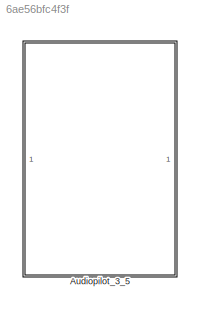
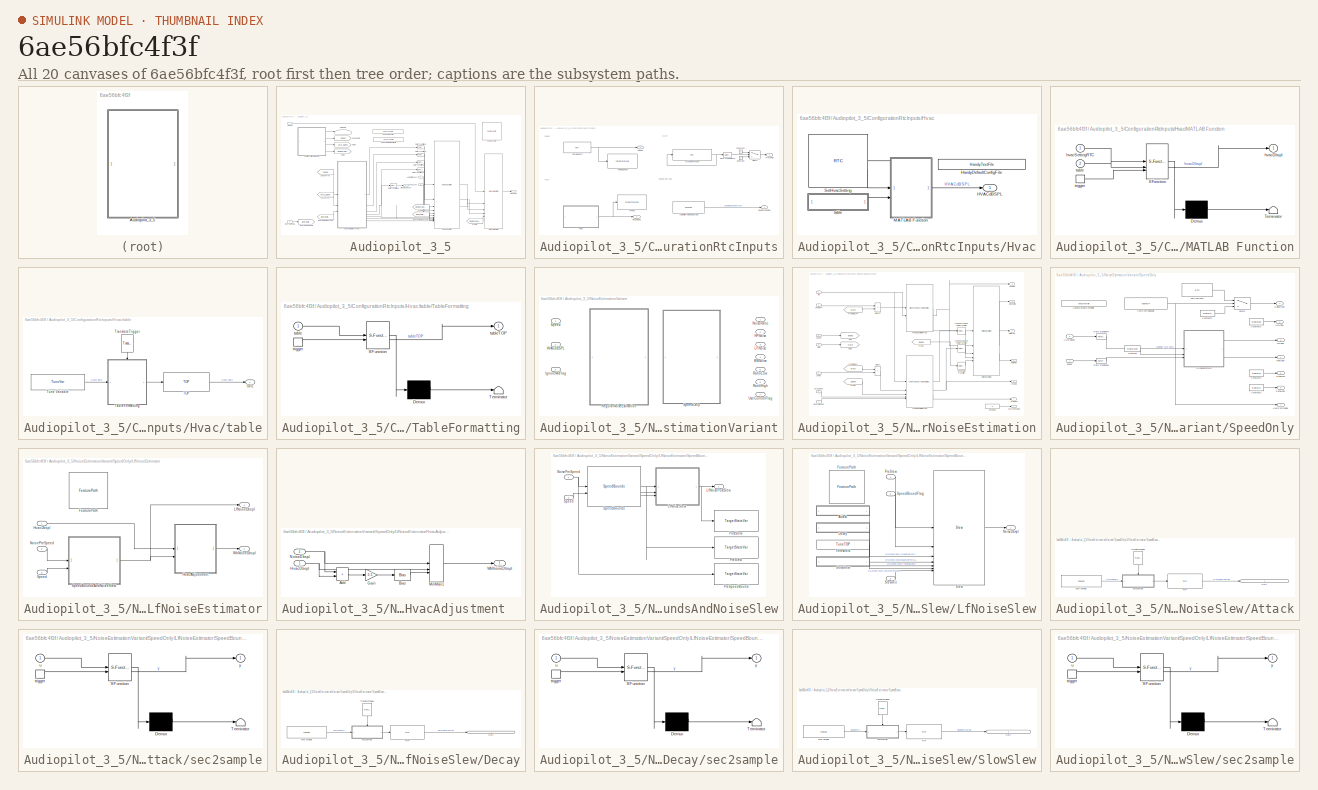
[diagram: thumbnail index - all 20 canvases of the model, root first then tree order]
MODEL slx_6ae56bfc4f3f
KIND library
CONFIG AbsTol = auto
CONFIG EnableMultiTasking = off
CONFIG FixedStep = auto
CONFIG MaxStep = auto
CONFIG MinStep = auto
CONFIG RelTol = 1e-3
CONFIG SampleTimeConstraint = Unconstrained
CONFIG SolverName = VariableStepAuto
CONFIG StartTime = 0.0
CONFIG StopTime = 10.0
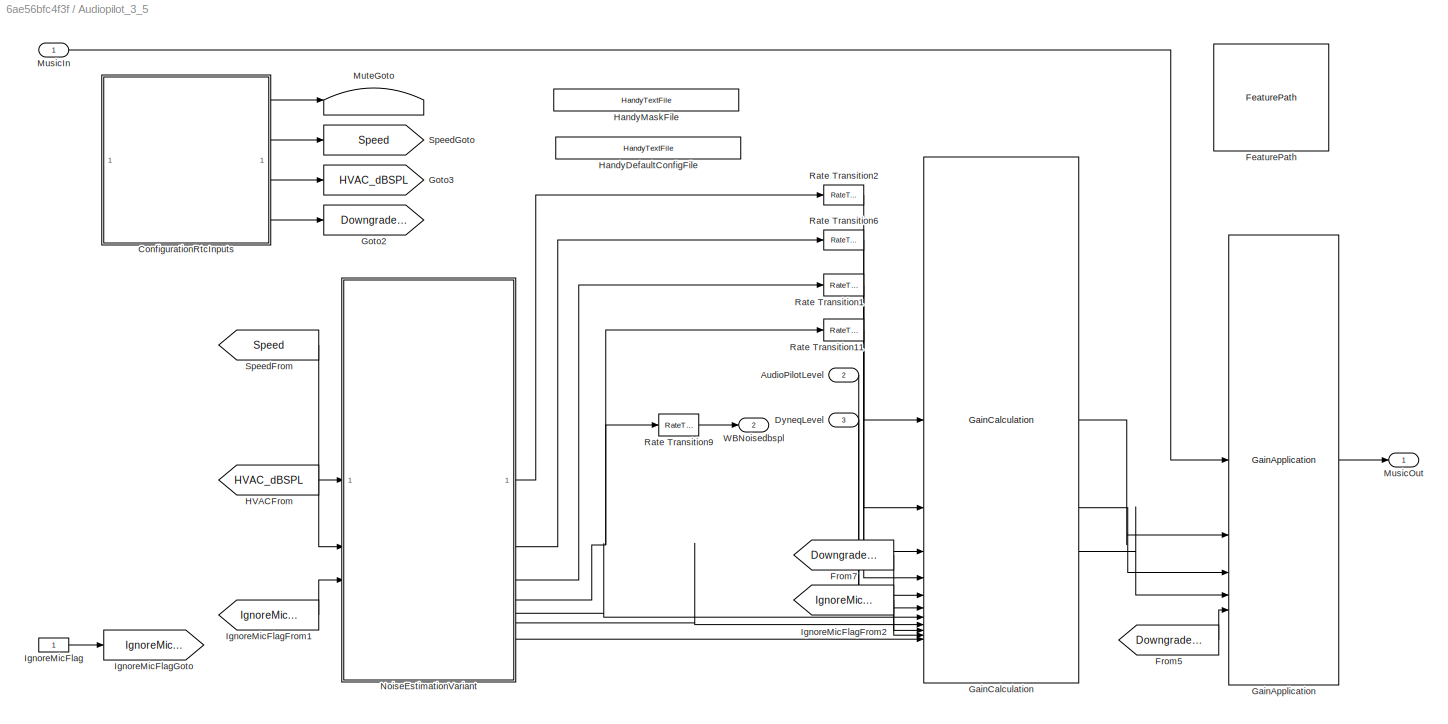
BLOCK [SubSystem] Audiopilot_3_5
BLOCK [Inport] Audiopilot_3_5/AudioPilotLevel
  OutDataTypeStr = single
  Port = 2
  PortDimensions = 1
  SignalType = real
BLOCK [SubSystem] Audiopilot_3_5/ConfigurationRtcInputs
BLOCK [Reference] Audiopilot_3_5/ConfigurationRtcInputs/APHvac  REF=StateVar/TargetStateVar
  SourceBlock = StateVar/TargetStateVar
  SourceProductName = Bose Talaria
  SourceType = Talaria Target State Variable
BLOCK [Reference] Audiopilot_3_5/ConfigurationRtcInputs/AudiopilotTwoDowngrade  REF=TuneVar/TuneTOP
  SourceBlock = TuneVar/TuneTOP
  SourceProductName = Bose Talaria
  SourceType = Talaria Trivial Tune TOP
BLOCK [Constant] Audiopilot_3_5/ConfigurationRtcInputs/Constant
  OutDataTypeStr = single
BLOCK [Constant] Audiopilot_3_5/ConfigurationRtcInputs/Constant1
  OutDataTypeStr = single
  Value = 0
BLOCK [Outport] Audiopilot_3_5/ConfigurationRtcInputs/DowngradeFlag
  Port = 4
  VectorParamsAs1DForOutWhenUnconnected = off
BLOCK [SubSystem] Audiopilot_3_5/ConfigurationRtcInputs/Hvac
BLOCK [Outport] Audiopilot_3_5/ConfigurationRtcInputs/Hvac/HVACdBSPL
  VectorParamsAs1DForOutWhenUnconnected = off
BLOCK [Reference] Audiopilot_3_5/ConfigurationRtcInputs/Hvac/HandyDefaultConfigFile  REF=HandyTextFile/HandyTextFile
  SourceBlock = HandyTextFile/HandyTextFile
  SourceProductName = Bose Talaria
  SourceType = Talaria Handy Text File
BLOCK [SubSystem] Audiopilot_3_5/ConfigurationRtcInputs/Hvac/MATLAB Function
  ErrorFcn = Stateflow.Translate.translate
  PermitHierarchicalResolution = ExplicitOnly
  SFBlockType = MATLAB Function
  TreatAsAtomicUnit = on
BLOCK [Demux] Audiopilot_3_5/ConfigurationRtcInputs/Hvac/MATLAB Function/ Demux 
  Outputs = 1
BLOCK [S-Function] Audiopilot_3_5/ConfigurationRtcInputs/Hvac/MATLAB Function/ SFunction 
  EnableBusSupport = off
  FunctionName = sf_sfun
  PortCounts = [3 2]
  SFcnIsStateOwnerBlock = off
  SFunctionDeploymentMode = off
  Tag = Stateflow S-Function 2
BLOCK [Terminator] Audiopilot_3_5/ConfigurationRtcInputs/Hvac/MATLAB Function/ Terminator 
BLOCK [Outport] Audiopilot_3_5/ConfigurationRtcInputs/Hvac/MATLAB Function/hvacDbspl
  VectorParamsAs1DForOutWhenUnconnected = off
BLOCK [Inport] Audiopilot_3_5/ConfigurationRtcInputs/Hvac/MATLAB Function/hvacSettingRTC
BLOCK [Inport] Audiopilot_3_5/ConfigurationRtcInputs/Hvac/MATLAB Function/table
  Port = 2
BLOCK [TriggerPort] Audiopilot_3_5/ConfigurationRtcInputs/Hvac/MATLAB Function/trigger
  ShowOutputPort = on
  StatesWhenEnabling = held
  TriggerType = function-call
  VariantControl = (inherit)
BLOCK [Reference] Audiopilot_3_5/ConfigurationRtcInputs/Hvac/SetHvacSetting  REF=RTC/RTC
  SourceBlock = RTC/RTC
  SourceProductName = Bose Talaria
  SourceType = Talaria RTC Receive
BLOCK [SubSystem] Audiopilot_3_5/ConfigurationRtcInputs/Hvac/table
BLOCK [Outport] Audiopilot_3_5/ConfigurationRtcInputs/Hvac/table/Out1
  VectorParamsAs1DForOutWhenUnconnected = off
BLOCK [Reference] Audiopilot_3_5/ConfigurationRtcInputs/Hvac/table/TOP  REF=TOP/TOP
  SourceBlock = TOP/TOP
  SourceProductName = Bose Talaria
  SourceType = Talaria Target Overlay Parameter
BLOCK [SubSystem] Audiopilot_3_5/ConfigurationRtcInputs/Hvac/table/TableFormatting
  ErrorFcn = Stateflow.Translate.translate
  PermitHierarchicalResolution = ExplicitOnly
  SFBlockType = MATLAB Function
  TreatAsAtomicUnit = on
BLOCK [Demux] Audiopilot_3_5/ConfigurationRtcInputs/Hvac/table/TableFormatting/ Demux 
  Outputs = 1
BLOCK [S-Function] Audiopilot_3_5/ConfigurationRtcInputs/Hvac/table/TableFormatting/ SFunction 
  EnableBusSupport = off
  FunctionName = sf_sfun
  Parameters = MaskHvacTableSize
  PortCounts = [2 2]
  SFcnIsStateOwnerBlock = off
  SFunctionDeploymentMode = off
  Tag = Stateflow S-Function 8
BLOCK [Terminator] Audiopilot_3_5/ConfigurationRtcInputs/Hvac/table/TableFormatting/ Terminator 
BLOCK [Inport] Audiopilot_3_5/ConfigurationRtcInputs/Hvac/table/TableFormatting/table
BLOCK [Outport] Audiopilot_3_5/ConfigurationRtcInputs/Hvac/table/TableFormatting/tableTOP
  VectorParamsAs1DForOutWhenUnconnected = off
BLOCK [TriggerPort] Audiopilot_3_5/ConfigurationRtcInputs/Hvac/table/TableFormatting/trigger
  ShowOutputPort = on
  StatesWhenEnabling = held
  TriggerType = function-call
  VariantControl = Variant
BLOCK [Reference] Audiopilot_3_5/ConfigurationRtcInputs/Hvac/table/TranslateTrigger  REF=TuneVar/TranslateTrigger
  NameLocation = left
  SourceBlock = TuneVar/TranslateTrigger
  SourceProductName = Bose Talaria
  SourceType = Talaria Translate Trigger
BLOCK [Reference] Audiopilot_3_5/ConfigurationRtcInputs/Hvac/table/Tune Variable  REF=TuneVar/TuneVar
  SourceBlock = TuneVar/TuneVar
  SourceProductName = Bose Talaria
  SourceType = Talaria Tune Variable
BLOCK [Outport] Audiopilot_3_5/ConfigurationRtcInputs/HvacdBSPL
  Port = 3
  VectorParamsAs1DForOutWhenUnconnected = off
BLOCK [Outport] Audiopilot_3_5/ConfigurationRtcInputs/MuteGain
  OutDataTypeStr = single
  VectorParamsAs1DForOutWhenUnconnected = off
BLOCK [Reference] Audiopilot_3_5/ConfigurationRtcInputs/MuteReference  REF=RTC/RTC
  SourceBlock = RTC/RTC
  SourceProductName = Bose Talaria
  SourceType = Talaria RTC Receive
BLOCK [RateTransition] Audiopilot_3_5/ConfigurationRtcInputs/Rate Transition12
  Deterministic = off
BLOCK [Reference] Audiopilot_3_5/ConfigurationRtcInputs/SetSpeedIn  REF=RTC/RTC
  SourceBlock = RTC/RTC
  SourceProductName = Bose Talaria
  SourceType = Talaria RTC Receive
BLOCK [Outport] Audiopilot_3_5/ConfigurationRtcInputs/Speed
  Port = 2
  VectorParamsAs1DForOutWhenUnconnected = off
BLOCK [Switch] Audiopilot_3_5/ConfigurationRtcInputs/Switch
  Criteria = u2 ~= 0
  InputSameDT = off
  OutDataTypeStr = single
  SaturateOnIntegerOverflow = off
BLOCK [Reference] Audiopilot_3_5/ConfigurationRtcInputs/VehicleSpeed  REF=StateVar/TargetStateVar
  SourceBlock = StateVar/TargetStateVar
  SourceProductName = Bose Talaria
  SourceType = Talaria Target State Variable
BLOCK [Inport] Audiopilot_3_5/DyneqLevel
  OutDataTypeStr = single
  Port = 3
  PortDimensions = 1
  SignalType = real
BLOCK [Reference] Audiopilot_3_5/FeaturePath  REF=FeaturePath/FeaturePath
  SourceBlock = FeaturePath/FeaturePath
  SourceProductName = Bose Talaria
  SourceType = Talaria Feature Path
BLOCK [From] Audiopilot_3_5/From5
  GotoTag = DowngradeFlag
  TagVisibility = global
BLOCK [From] Audiopilot_3_5/From7
  GotoTag = DowngradeFlag
  TagVisibility = global
BLOCK [Reference] Audiopilot_3_5/GainApplication  REF=Compensation/GainApplication
  SourceBlock = Compensation/GainApplication
  SourceType = AudioPilot - Loudness Gain Application
BLOCK [Reference] Audiopilot_3_5/GainCalculation  REF=Compensation/GainCalculation
  SourceBlock = Compensation/GainCalculation
  SourceType = AudioPilot - Gain Calculation
BLOCK [Goto] Audiopilot_3_5/Goto2
  GotoTag = DowngradeFlag
BLOCK [Goto] Audiopilot_3_5/Goto3
  GotoTag = HVAC_dBSPL
BLOCK [From] Audiopilot_3_5/HVACFrom
  GotoTag = HVAC_dBSPL
BLOCK [Reference] Audiopilot_3_5/HandyDefaultConfigFile  REF=HandyTextFile/HandyTextFile
  SourceBlock = HandyTextFile/HandyTextFile
  SourceProductName = Bose Talaria
  SourceType = Talaria Handy Text File
BLOCK [Reference] Audiopilot_3_5/HandyMaskFile  REF=HandyTextFile/HandyTextFile
  SourceBlock = HandyTextFile/HandyTextFile
  SourceProductName = Bose Talaria
  SourceType = Talaria Handy Text File
BLOCK [Constant] Audiopilot_3_5/IgnoreMicFlag
  OutDataTypeStr = boolean
BLOCK [From] Audiopilot_3_5/IgnoreMicFlagFrom1
  GotoTag = IgnoreMicFlag
BLOCK [From] Audiopilot_3_5/IgnoreMicFlagFrom2
  GotoTag = IgnoreMicFlag
  TagVisibility = global
BLOCK [Goto] Audiopilot_3_5/IgnoreMicFlagGoto
  GotoTag = IgnoreMicFlag
BLOCK [Inport] Audiopilot_3_5/MusicIn
  OutDataTypeStr = single
  PortDimensions = [FrameSize NumMusicChannels]
  SignalType = real
BLOCK [Outport] Audiopilot_3_5/MusicOut
  VectorParamsAs1DForOutWhenUnconnected = off
BLOCK [Terminator] Audiopilot_3_5/MuteGoto
BLOCK [SubSystem] Audiopilot_3_5/NoiseEstimationVariant
  LabelModeActiveChoice = Speed Only
  PropagateVariantConditions = on
  Variant = on
  VariantControlMode = label
BLOCK [Outport] Audiopilot_3_5/NoiseEstimationVariant/HFNoise
  Port = 2
  VectorParamsAs1DForOutWhenUnconnected = off
BLOCK [Inport] Audiopilot_3_5/NoiseEstimationVariant/HVACdBSPL
  Port = 2
BLOCK [Inport] Audiopilot_3_5/NoiseEstimationVariant/IgnoreMicFlag
  Port = 3
BLOCK [Outport] Audiopilot_3_5/NoiseEstimationVariant/LFNoise
  Port = 3
  VectorParamsAs1DForOutWhenUnconnected = off
BLOCK [Outport] Audiopilot_3_5/NoiseEstimationVariant/NoiseRatio
  VectorParamsAs1DForOutWhenUnconnected = off
BLOCK [Outport] Audiopilot_3_5/NoiseEstimationVariant/RatioHigh
  Port = 6
  VectorParamsAs1DForOutWhenUnconnected = off
BLOCK [Outport] Audiopilot_3_5/NoiseEstimationVariant/RatioLow
  Port = 5
  VectorParamsAs1DForOutWhenUnconnected = off
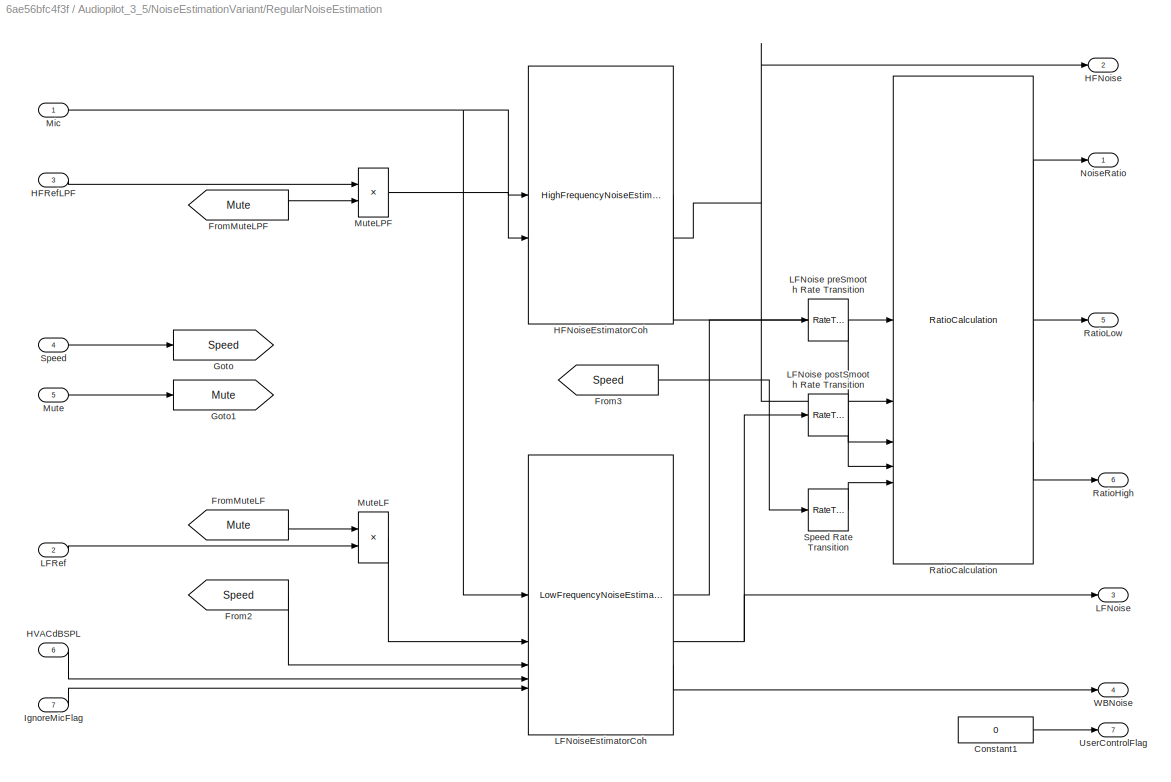
BLOCK [SubSystem] Audiopilot_3_5/NoiseEstimationVariant/RegularNoiseEstimation
  VariantControl = Regular
BLOCK [Constant] Audiopilot_3_5/NoiseEstimationVariant/RegularNoiseEstimation/Constant1
  OutDataTypeStr = boolean
  Value = 0
BLOCK [From] Audiopilot_3_5/NoiseEstimationVariant/RegularNoiseEstimation/From2
  GotoTag = Speed
  TagVisibility = global
BLOCK [From] Audiopilot_3_5/NoiseEstimationVariant/RegularNoiseEstimation/From3
  GotoTag = Speed
  TagVisibility = global
BLOCK [From] Audiopilot_3_5/NoiseEstimationVariant/RegularNoiseEstimation/FromMuteLF
  GotoTag = Mute
  NameLocation = top
  TagVisibility = global
BLOCK [From] Audiopilot_3_5/NoiseEstimationVariant/RegularNoiseEstimation/FromMuteLPF
  GotoTag = Mute
  TagVisibility = global
BLOCK [Goto] Audiopilot_3_5/NoiseEstimationVariant/RegularNoiseEstimation/Goto
  GotoTag = Speed
BLOCK [Goto] Audiopilot_3_5/NoiseEstimationVariant/RegularNoiseEstimation/Goto1
  GotoTag = Mute
BLOCK [Outport] Audiopilot_3_5/NoiseEstimationVariant/RegularNoiseEstimation/HFNoise
  Port = 2
  VectorParamsAs1DForOutWhenUnconnected = off
BLOCK [Reference] Audiopilot_3_5/NoiseEstimationVariant/RegularNoiseEstimation/HFNoiseEstimatorCoh  REF=HighFrequencyNoiseEstimatorCoh/HighFrequencyNoiseEstimatorCoh
  SourceBlock = HighFrequencyNoiseEstimatorCoh/HighFrequencyNoiseEstimatorCoh
  SourceType = AudioPilot - High-Frequency Noise Estimator
BLOCK [Inport] Audiopilot_3_5/NoiseEstimationVariant/RegularNoiseEstimation/HFRefLPF
  OutDataTypeStr = single
  Port = 3
  PortDimensions = [FrameSize NumHFRefLPF]
  SignalType = real
BLOCK [Inport] Audiopilot_3_5/NoiseEstimationVariant/RegularNoiseEstimation/HVACdBSPL
  OutDataTypeStr = single
  Port = 6
  SignalType = real
BLOCK [Inport] Audiopilot_3_5/NoiseEstimationVariant/RegularNoiseEstimation/IgnoreMicFlag
  Port = 7
  SignalType = real
BLOCK [Outport] Audiopilot_3_5/NoiseEstimationVariant/RegularNoiseEstimation/LFNoise
  Port = 3
  VectorParamsAs1DForOutWhenUnconnected = off
BLOCK [RateTransition] Audiopilot_3_5/NoiseEstimationVariant/RegularNoiseEstimation/LFNoise postSmooth Rate Transition
  Deterministic = off
BLOCK [RateTransition] Audiopilot_3_5/NoiseEstimationVariant/RegularNoiseEstimation/LFNoise preSmooth Rate Transition
  Deterministic = off
BLOCK [Reference] Audiopilot_3_5/NoiseEstimationVariant/RegularNoiseEstimation/LFNoiseEstimatorCoh  REF=LowFrequencyNoiseEstimatorCoh/LowFrequencyNoiseEstimatorCoh
  SourceBlock = LowFrequencyNoiseEstimatorCoh/LowFrequencyNoiseEstimatorCoh
  SourceType = AudioPilot - Low-Frequency Noise Estimator
BLOCK [Inport] Audiopilot_3_5/NoiseEstimationVariant/RegularNoiseEstimation/LFRef
  OutDataTypeStr = single
  Port = 2
  PortDimensions = [FrameSize NumLFRef]
  SignalType = real
BLOCK [Inport] Audiopilot_3_5/NoiseEstimationVariant/RegularNoiseEstimation/Mic
  PortDimensions = [FrameSize NumMicChannels]
BLOCK [Inport] Audiopilot_3_5/NoiseEstimationVariant/RegularNoiseEstimation/Mute
  OutDataTypeStr = single
  Port = 5
  SignalType = real
BLOCK [Product] Audiopilot_3_5/NoiseEstimationVariant/RegularNoiseEstimation/MuteLF
  Inputs = **
BLOCK [Product] Audiopilot_3_5/NoiseEstimationVariant/RegularNoiseEstimation/MuteLPF
  Inputs = **
BLOCK [Outport] Audiopilot_3_5/NoiseEstimationVariant/RegularNoiseEstimation/NoiseRatio
  VectorParamsAs1DForOutWhenUnconnected = off
BLOCK [Reference] Audiopilot_3_5/NoiseEstimationVariant/RegularNoiseEstimation/RatioCalculation  REF=HighFrequencyNoiseEstimatorCoh/RatioCalculation
  SourceBlock = HighFrequencyNoiseEstimatorCoh/RatioCalculation
  SourceType = AudioPilot - Noise Ratio Calculation
BLOCK [Outport] Audiopilot_3_5/NoiseEstimationVariant/RegularNoiseEstimation/RatioHigh
  Port = 6
  VectorParamsAs1DForOutWhenUnconnected = off
BLOCK [Outport] Audiopilot_3_5/NoiseEstimationVariant/RegularNoiseEstimation/RatioLow
  Port = 5
  VectorParamsAs1DForOutWhenUnconnected = off
BLOCK [Inport] Audiopilot_3_5/NoiseEstimationVariant/RegularNoiseEstimation/Speed
  OutDataTypeStr = single
  Port = 4
  SignalType = real
BLOCK [RateTransition] Audiopilot_3_5/NoiseEstimationVariant/RegularNoiseEstimation/Speed Rate Transition
  Deterministic = off
BLOCK [Outport] Audiopilot_3_5/NoiseEstimationVariant/RegularNoiseEstimation/UserControlFlag
  Port = 7
  VectorParamsAs1DForOutWhenUnconnected = off
BLOCK [Outport] Audiopilot_3_5/NoiseEstimationVariant/RegularNoiseEstimation/WBNoise
  Port = 4
  VectorParamsAs1DForOutWhenUnconnected = off
BLOCK [Inport] Audiopilot_3_5/NoiseEstimationVariant/Speed
BLOCK [SubSystem] Audiopilot_3_5/NoiseEstimationVariant/SpeedOnly
  VariantControl = Speed Only
BLOCK [Constant] Audiopilot_3_5/NoiseEstimationVariant/SpeedOnly/Constant
  OutDataTypeStr = single
  Value = single(100)
BLOCK [Constant] Audiopilot_3_5/NoiseEstimationVariant/SpeedOnly/Constant1
  OutDataTypeStr = single
  Value = single(60)
BLOCK [Constant] Audiopilot_3_5/NoiseEstimationVariant/SpeedOnly/Constant2
  OutDataTypeStr = single
  Value = single(1)
BLOCK [Constant] Audiopilot_3_5/NoiseEstimationVariant/SpeedOnly/Constant3
  OutDataTypeStr = single
  Value = single(1)
BLOCK [Constant] Audiopilot_3_5/NoiseEstimationVariant/SpeedOnly/Constant4
  OutDataTypeStr = single
  Value = single(0)
BLOCK [Outport] Audiopilot_3_5/NoiseEstimationVariant/SpeedOnly/HFNoise
  Port = 2
  VectorParamsAs1DForOutWhenUnconnected = off
BLOCK [Inport] Audiopilot_3_5/NoiseEstimationVariant/SpeedOnly/HVACdBSPL
  OutDataTypeStr = single
  Port = 2
  SignalType = real
BLOCK [Reference] Audiopilot_3_5/NoiseEstimationVariant/SpeedOnly/HandyDefaultConfigFile  REF=HandyTextFile/HandyTextFile
  SourceBlock = HandyTextFile/HandyTextFile
  SourceProductName = Bose Talaria
  SourceType = Talaria Handy Text File
BLOCK [Outport] Audiopilot_3_5/NoiseEstimationVariant/SpeedOnly/LFNoise
  Port = 3
  VectorParamsAs1DForOutWhenUnconnected = off
BLOCK [SubSystem] Audiopilot_3_5/NoiseEstimationVariant/SpeedOnly/LfNoiseEstimator
BLOCK [Reference] Audiopilot_3_5/NoiseEstimationVariant/SpeedOnly/LfNoiseEstimator/FeaturePath  REF=FeaturePath/FeaturePath
  SourceBlock = FeaturePath/FeaturePath
  SourceProductName = Bose Talaria
  SourceType = Talaria Feature Path
BLOCK [SubSystem] Audiopilot_3_5/NoiseEstimationVariant/SpeedOnly/LfNoiseEstimator/HvacAdjustment  
BLOCK [Sum] Audiopilot_3_5/NoiseEstimationVariant/SpeedOnly/LfNoiseEstimator/HvacAdjustment  /Add
  IconShape = rectangular
BLOCK [Bias] Audiopilot_3_5/NoiseEstimationVariant/SpeedOnly/LfNoiseEstimator/HvacAdjustment  /Bias
  Bias = 3.7
  SaturateOnIntegerOverflow = off
BLOCK [Gain] Audiopilot_3_5/NoiseEstimationVariant/SpeedOnly/LfNoiseEstimator/HvacAdjustment  /Gain
  Gain = 0.5
BLOCK [Inport] Audiopilot_3_5/NoiseEstimationVariant/SpeedOnly/LfNoiseEstimator/HvacAdjustment  /HvacDbspl
BLOCK [MinMax] Audiopilot_3_5/NoiseEstimationVariant/SpeedOnly/LfNoiseEstimator/HvacAdjustment  /MinMax1
  Function = max
  Inputs = 3
BLOCK [Inport] Audiopilot_3_5/NoiseEstimationVariant/SpeedOnly/LfNoiseEstimator/HvacAdjustment  /NoiseDbspl
  Port = 2
BLOCK [Outport] Audiopilot_3_5/NoiseEstimationVariant/SpeedOnly/LfNoiseEstimator/HvacAdjustment  /WbNoiseDbspl
  VectorParamsAs1DForOutWhenUnconnected = off
BLOCK [Inport] Audiopilot_3_5/NoiseEstimationVariant/SpeedOnly/LfNoiseEstimator/HvacDbspl
BLOCK [Outport] Audiopilot_3_5/NoiseEstimationVariant/SpeedOnly/LfNoiseEstimator/LfNoiseDbspl
  VectorParamsAs1DForOutWhenUnconnected = off
BLOCK [Inport] Audiopilot_3_5/NoiseEstimationVariant/SpeedOnly/LfNoiseEstimator/NoisePreSpeed
  Port = 2
BLOCK [Inport] Audiopilot_3_5/NoiseEstimationVariant/SpeedOnly/LfNoiseEstimator/Speed
  Port = 3
BLOCK [SubSystem] Audiopilot_3_5/NoiseEstimationVariant/SpeedOnly/LfNoiseEstimator/SpeedBoundsAndNoiseSlew
BLOCK [Outport] Audiopilot_3_5/NoiseEstimationVariant/SpeedOnly/LfNoiseEstimator/SpeedBoundsAndNoiseSlew/LfNoisePostSlew
  VectorParamsAs1DForOutWhenUnconnected = off
BLOCK [SubSystem] Audiopilot_3_5/NoiseEstimationVariant/SpeedOnly/LfNoiseEstimator/SpeedBoundsAndNoiseSlew/LfNoiseSlew
BLOCK [SubSystem] Audiopilot_3_5/NoiseEstimationVariant/SpeedOnly/LfNoiseEstimator/SpeedBoundsAndNoiseSlew/LfNoiseSlew/Attack
BLOCK [Outport] Audiopilot_3_5/NoiseEstimationVariant/SpeedOnly/LfNoiseEstimator/SpeedBoundsAndNoiseSlew/LfNoiseSlew/Attack/Out1
  IconDisplay = Signal name
  VectorParamsAs1DForOutWhenUnconnected = off
BLOCK [Reference] Audiopilot_3_5/NoiseEstimationVariant/SpeedOnly/LfNoiseEstimator/SpeedBoundsAndNoiseSlew/LfNoiseSlew/Attack/TOP  REF=TOP/TOP
  SourceBlock = TOP/TOP
  SourceProductName = Bose Talaria
  SourceType = Talaria Target Overlay Parameter
BLOCK [Reference] Audiopilot_3_5/NoiseEstimationVariant/SpeedOnly/LfNoiseEstimator/SpeedBoundsAndNoiseSlew/LfNoiseSlew/Attack/TranslateTrigger  REF=TuneVar/TranslateTrigger
  NameLocation = left
  SourceBlock = TuneVar/TranslateTrigger
  SourceProductName = Bose Talaria
  SourceType = Talaria Translate Trigger
BLOCK [Reference] Audiopilot_3_5/NoiseEstimationVariant/SpeedOnly/LfNoiseEstimator/SpeedBoundsAndNoiseSlew/LfNoiseSlew/Attack/Tune Variable  REF=TuneVar/TuneVar
  SourceBlock = TuneVar/TuneVar
  SourceProductName = Bose Talaria
  SourceType = Talaria Tune Variable
BLOCK [SubSystem] Audiopilot_3_5/NoiseEstimationVariant/SpeedOnly/LfNoiseEstimator/SpeedBoundsAndNoiseSlew/LfNoiseSlew/Attack/sec2sample
  ErrorFcn = Stateflow.Translate.translate
  PermitHierarchicalResolution = ExplicitOnly
  SFBlockType = MATLAB Function
  TreatAsAtomicUnit = on
BLOCK [Demux] Audiopilot_3_5/NoiseEstimationVariant/SpeedOnly/LfNoiseEstimator/SpeedBoundsAndNoiseSlew/LfNoiseSlew/Attack/sec2sample/ Demux 
  Outputs = 1
BLOCK [S-Function] Audiopilot_3_5/NoiseEstimationVariant/SpeedOnly/LfNoiseEstimator/SpeedBoundsAndNoiseSlew/LfNoiseSlew/Attack/sec2sample/ SFunction 
  EnableBusSupport = off
  FunctionName = sf_sfun
  Parameters = DecRate
  PortCounts = [2 2]
  SFcnIsStateOwnerBlock = off
  SFunctionDeploymentMode = off
  Tag = Stateflow S-Function 1
BLOCK [Terminator] Audiopilot_3_5/NoiseEstimationVariant/SpeedOnly/LfNoiseEstimator/SpeedBoundsAndNoiseSlew/LfNoiseSlew/Attack/sec2sample/ Terminator 
BLOCK [TriggerPort] Audiopilot_3_5/NoiseEstimationVariant/SpeedOnly/LfNoiseEstimator/SpeedBoundsAndNoiseSlew/LfNoiseSlew/Attack/sec2sample/trigger
  ShowOutputPort = on
  StatesWhenEnabling = held
  TriggerType = function-call
  VariantControl = (inherit)
BLOCK [Inport] Audiopilot_3_5/NoiseEstimationVariant/SpeedOnly/LfNoiseEstimator/SpeedBoundsAndNoiseSlew/LfNoiseSlew/Attack/sec2sample/u
BLOCK [Outport] Audiopilot_3_5/NoiseEstimationVariant/SpeedOnly/LfNoiseEstimator/SpeedBoundsAndNoiseSlew/LfNoiseSlew/Attack/sec2sample/y
  VectorParamsAs1DForOutWhenUnconnected = off
BLOCK [SubSystem] Audiopilot_3_5/NoiseEstimationVariant/SpeedOnly/LfNoiseEstimator/SpeedBoundsAndNoiseSlew/LfNoiseSlew/Decay
BLOCK [Outport] Audiopilot_3_5/NoiseEstimationVariant/SpeedOnly/LfNoiseEstimator/SpeedBoundsAndNoiseSlew/LfNoiseSlew/Decay/Out1
  IconDisplay = Signal name
  VectorParamsAs1DForOutWhenUnconnected = off
BLOCK [Reference] Audiopilot_3_5/NoiseEstimationVariant/SpeedOnly/LfNoiseEstimator/SpeedBoundsAndNoiseSlew/LfNoiseSlew/Decay/TOP  REF=TOP/TOP
  SourceBlock = TOP/TOP
  SourceProductName = Bose Talaria
  SourceType = Talaria Target Overlay Parameter
BLOCK [Reference] Audiopilot_3_5/NoiseEstimationVariant/SpeedOnly/LfNoiseEstimator/SpeedBoundsAndNoiseSlew/LfNoiseSlew/Decay/TranslateTrigger  REF=TuneVar/TranslateTrigger
  NameLocation = left
  SourceBlock = TuneVar/TranslateTrigger
  SourceProductName = Bose Talaria
  SourceType = Talaria Translate Trigger
BLOCK [Reference] Audiopilot_3_5/NoiseEstimationVariant/SpeedOnly/LfNoiseEstimator/SpeedBoundsAndNoiseSlew/LfNoiseSlew/Decay/Tune Variable  REF=TuneVar/TuneVar
  SourceBlock = TuneVar/TuneVar
  SourceProductName = Bose Talaria
  SourceType = Talaria Tune Variable
BLOCK [SubSystem] Audiopilot_3_5/NoiseEstimationVariant/SpeedOnly/LfNoiseEstimator/SpeedBoundsAndNoiseSlew/LfNoiseSlew/Decay/sec2sample
  ErrorFcn = Stateflow.Translate.translate
  PermitHierarchicalResolution = ExplicitOnly
  SFBlockType = MATLAB Function
  TreatAsAtomicUnit = on
BLOCK [Demux] Audiopilot_3_5/NoiseEstimationVariant/SpeedOnly/LfNoiseEstimator/SpeedBoundsAndNoiseSlew/LfNoiseSlew/Decay/sec2sample/ Demux 
  Outputs = 1
BLOCK [S-Function] Audiopilot_3_5/NoiseEstimationVariant/SpeedOnly/LfNoiseEstimator/SpeedBoundsAndNoiseSlew/LfNoiseSlew/Decay/sec2sample/ SFunction 
  EnableBusSupport = off
  FunctionName = sf_sfun
  Parameters = DecRate
  PortCounts = [2 2]
  SFcnIsStateOwnerBlock = off
  SFunctionDeploymentMode = off
  Tag = Stateflow S-Function 4
BLOCK [Terminator] Audiopilot_3_5/NoiseEstimationVariant/SpeedOnly/LfNoiseEstimator/SpeedBoundsAndNoiseSlew/LfNoiseSlew/Decay/sec2sample/ Terminator 
BLOCK [TriggerPort] Audiopilot_3_5/NoiseEstimationVariant/SpeedOnly/LfNoiseEstimator/SpeedBoundsAndNoiseSlew/LfNoiseSlew/Decay/sec2sample/trigger
  ShowOutputPort = on
  StatesWhenEnabling = held
  TriggerType = function-call
  VariantControl = (inherit)
BLOCK [Inport] Audiopilot_3_5/NoiseEstimationVariant/SpeedOnly/LfNoiseEstimator/SpeedBoundsAndNoiseSlew/LfNoiseSlew/Decay/sec2sample/u
BLOCK [Outport] Audiopilot_3_5/NoiseEstimationVariant/SpeedOnly/LfNoiseEstimator/SpeedBoundsAndNoiseSlew/LfNoiseSlew/Decay/sec2sample/y
  VectorParamsAs1DForOutWhenUnconnected = off
BLOCK [Reference] Audiopilot_3_5/NoiseEstimationVariant/SpeedOnly/LfNoiseEstimator/SpeedBoundsAndNoiseSlew/LfNoiseSlew/FeaturePath  REF=FeaturePath/FeaturePath
  SourceBlock = FeaturePath/FeaturePath
  SourceProductName = Bose Talaria
  SourceType = Talaria Feature Path
BLOCK [Outport] Audiopilot_3_5/NoiseEstimationVariant/SpeedOnly/LfNoiseEstimator/SpeedBoundsAndNoiseSlew/LfNoiseSlew/NoiseDbspl
  VectorParamsAs1DForOutWhenUnconnected = off
BLOCK [Inport] Audiopilot_3_5/NoiseEstimationVariant/SpeedOnly/LfNoiseEstimator/SpeedBoundsAndNoiseSlew/LfNoiseSlew/PreSlew
BLOCK [Reference] Audiopilot_3_5/NoiseEstimationVariant/SpeedOnly/LfNoiseEstimator/SpeedBoundsAndNoiseSlew/LfNoiseSlew/Slew  REF=SpeedBoundsNoiseSlew/Slew
  SourceBlock = SpeedBoundsNoiseSlew/Slew
  SourceType = SubSystem
BLOCK [Inport] Audiopilot_3_5/NoiseEstimationVariant/SpeedOnly/LfNoiseEstimator/SpeedBoundsAndNoiseSlew/LfNoiseSlew/SlewInit
  Port = 3
BLOCK [SubSystem] Audiopilot_3_5/NoiseEstimationVariant/SpeedOnly/LfNoiseEstimator/SpeedBoundsAndNoiseSlew/LfNoiseSlew/SlowSlew
BLOCK [Outport] Audiopilot_3_5/NoiseEstimationVariant/SpeedOnly/LfNoiseEstimator/SpeedBoundsAndNoiseSlew/LfNoiseSlew/SlowSlew/Out1
  IconDisplay = Signal name
  VectorParamsAs1DForOutWhenUnconnected = off
BLOCK [Reference] Audiopilot_3_5/NoiseEstimationVariant/SpeedOnly/LfNoiseEstimator/SpeedBoundsAndNoiseSlew/LfNoiseSlew/SlowSlew/TOP  REF=TOP/TOP
  SourceBlock = TOP/TOP
  SourceProductName = Bose Talaria
  SourceType = Talaria Target Overlay Parameter
BLOCK [Reference] Audiopilot_3_5/NoiseEstimationVariant/SpeedOnly/LfNoiseEstimator/SpeedBoundsAndNoiseSlew/LfNoiseSlew/SlowSlew/TranslateTrigger  REF=TuneVar/TranslateTrigger
  NameLocation = left
  SourceBlock = TuneVar/TranslateTrigger
  SourceProductName = Bose Talaria
  SourceType = Talaria Translate Trigger
BLOCK [Reference] Audiopilot_3_5/NoiseEstimationVariant/SpeedOnly/LfNoiseEstimator/SpeedBoundsAndNoiseSlew/LfNoiseSlew/SlowSlew/Tune Variable  REF=TuneVar/TuneVar
  SourceBlock = TuneVar/TuneVar
  SourceProductName = Bose Talaria
  SourceType = Talaria Tune Variable
BLOCK [SubSystem] Audiopilot_3_5/NoiseEstimationVariant/SpeedOnly/LfNoiseEstimator/SpeedBoundsAndNoiseSlew/LfNoiseSlew/SlowSlew/sec2sample
  ErrorFcn = Stateflow.Translate.translate
  PermitHierarchicalResolution = ExplicitOnly
  SFBlockType = MATLAB Function
  TreatAsAtomicUnit = on
BLOCK [Demux] Audiopilot_3_5/NoiseEstimationVariant/SpeedOnly/LfNoiseEstimator/SpeedBoundsAndNoiseSlew/LfNoiseSlew/SlowSlew/sec2sample/ Demux 
  Outputs = 1
BLOCK [S-Function] Audiopilot_3_5/NoiseEstimationVariant/SpeedOnly/LfNoiseEstimator/SpeedBoundsAndNoiseSlew/LfNoiseSlew/SlowSlew/sec2sample/ SFunction 
  EnableBusSupport = off
  FunctionName = sf_sfun
  Parameters = DecRate
  PortCounts = [2 2]
  SFcnIsStateOwnerBlock = off
  SFunctionDeploymentMode = off
  Tag = Stateflow S-Function 6
BLOCK [Terminator] Audiopilot_3_5/NoiseEstimationVariant/SpeedOnly/LfNoiseEstimator/SpeedBoundsAndNoiseSlew/LfNoiseSlew/SlowSlew/sec2sample/ Terminator 
BLOCK [TriggerPort] Audiopilot_3_5/NoiseEstimationVariant/SpeedOnly/LfNoiseEstimator/SpeedBoundsAndNoiseSlew/LfNoiseSlew/SlowSlew/sec2sample/trigger
  ShowOutputPort = on
  StatesWhenEnabling = held
  TriggerType = function-call
  VariantControl = (inherit)
BLOCK [Inport] Audiopilot_3_5/NoiseEstimationVariant/SpeedOnly/LfNoiseEstimator/SpeedBoundsAndNoiseSlew/LfNoiseSlew/SlowSlew/sec2sample/u
BLOCK [Outport] Audiopilot_3_5/NoiseEstimationVariant/SpeedOnly/LfNoiseEstimator/SpeedBoundsAndNoiseSlew/LfNoiseSlew/SlowSlew/sec2sample/y
  VectorParamsAs1DForOutWhenUnconnected = off
BLOCK [Inport] Audiopilot_3_5/NoiseEstimationVariant/SpeedOnly/LfNoiseEstimator/SpeedBoundsAndNoiseSlew/LfNoiseSlew/SpeedBoundFlag
  Port = 2
BLOCK [Reference] Audiopilot_3_5/NoiseEstimationVariant/SpeedOnly/LfNoiseEstimator/SpeedBoundsAndNoiseSlew/LfNoiseSlew/Threshold  REF=TuneVar/TuneTOP
  SourceBlock = TuneVar/TuneTOP
  SourceProductName = Bose Talaria
  SourceType = Talaria Trivial Tune TOP
BLOCK [Inport] Audiopilot_3_5/NoiseEstimationVariant/SpeedOnly/LfNoiseEstimator/SpeedBoundsAndNoiseSlew/NoisePreSpeed
BLOCK [Reference] Audiopilot_3_5/NoiseEstimationVariant/SpeedOnly/LfNoiseEstimator/SpeedBoundsAndNoiseSlew/PostSlew  REF=StateVar/TargetStateVar
  SourceBlock = StateVar/TargetStateVar
  SourceProductName = Bose Talaria
  SourceType = Talaria Target State Variable
BLOCK [Reference] Audiopilot_3_5/NoiseEstimationVariant/SpeedOnly/LfNoiseEstimator/SpeedBoundsAndNoiseSlew/PreSlew  REF=StateVar/TargetStateVar
  SourceBlock = StateVar/TargetStateVar
  SourceProductName = Bose Talaria
  SourceType = Talaria Target State Variable
BLOCK [Reference] Audiopilot_3_5/NoiseEstimationVariant/SpeedOnly/LfNoiseEstimator/SpeedBoundsAndNoiseSlew/PreSpeedBound  REF=StateVar/TargetStateVar
  SourceBlock = StateVar/TargetStateVar
  SourceProductName = Bose Talaria
  SourceType = Talaria Target State Variable
BLOCK [Inport] Audiopilot_3_5/NoiseEstimationVariant/SpeedOnly/LfNoiseEstimator/SpeedBoundsAndNoiseSlew/Speed
  Port = 2
BLOCK [Reference] Audiopilot_3_5/NoiseEstimationVariant/SpeedOnly/LfNoiseEstimator/SpeedBoundsAndNoiseSlew/SpeedBounds  REF=SpeedBoundsNoiseSlew/SpeedBounds
  SourceBlock = SpeedBoundsNoiseSlew/SpeedBounds
  SourceType = AudioPilot - Speed Bounds for Low Frequency Noise Estimate
BLOCK [Outport] Audiopilot_3_5/NoiseEstimationVariant/SpeedOnly/LfNoiseEstimator/WbNoiseDbspl
  Port = 2
  VectorParamsAs1DForOutWhenUnconnected = off
BLOCK [Outport] Audiopilot_3_5/NoiseEstimationVariant/SpeedOnly/NoiseRatio
  VectorParamsAs1DForOutWhenUnconnected = off
BLOCK [RateTransition] Audiopilot_3_5/NoiseEstimationVariant/SpeedOnly/Rate Transition4
  Deterministic = off
  OutPortSampleTime = 1/DecRate
BLOCK [RateTransition] Audiopilot_3_5/NoiseEstimationVariant/SpeedOnly/Rate Transition5
  Deterministic = off
  OutPortSampleTime = 1/DecRate
BLOCK [Outport] Audiopilot_3_5/NoiseEstimationVariant/SpeedOnly/RatioHigh
  Port = 6
  VectorParamsAs1DForOutWhenUnconnected = off
BLOCK [Outport] Audiopilot_3_5/NoiseEstimationVariant/SpeedOnly/RatioLow
  Port = 5
  VectorParamsAs1DForOutWhenUnconnected = off
BLOCK [Reference] Audiopilot_3_5/NoiseEstimationVariant/SpeedOnly/SetUserLevel  REF=RTC/RTC
  SourceBlock = RTC/RTC
  SourceProductName = Bose Talaria
  SourceType = Talaria RTC Receive
BLOCK [Inport] Audiopilot_3_5/NoiseEstimationVariant/SpeedOnly/Speed
  OutDataTypeStr = single
  SignalType = real
BLOCK [Switch] Audiopilot_3_5/NoiseEstimationVariant/SpeedOnly/Switch
  Criteria = u2 ~= 0
  InputSameDT = off
  SaturateOnIntegerOverflow = off
  Threshold = 0.5
BLOCK [Reference] Audiopilot_3_5/NoiseEstimationVariant/SpeedOnly/UserControlEnable  REF=TuneVar/TuneTOP
  SourceBlock = TuneVar/TuneTOP
  SourceProductName = Bose Talaria
  SourceType = Talaria Trivial Tune TOP
BLOCK [Outport] Audiopilot_3_5/NoiseEstimationVariant/SpeedOnly/UserControlFlag
  Port = 7
  VectorParamsAs1DForOutWhenUnconnected = off
BLOCK [Outport] Audiopilot_3_5/NoiseEstimationVariant/SpeedOnly/WBNoise
  Port = 4
  VectorParamsAs1DForOutWhenUnconnected = off
BLOCK [Outport] Audiopilot_3_5/NoiseEstimationVariant/UserControlFlag 
  Port = 7
  VectorParamsAs1DForOutWhenUnconnected = off
BLOCK [Outport] Audiopilot_3_5/NoiseEstimationVariant/WBNoise
  Port = 4
  VectorParamsAs1DForOutWhenUnconnected = off
BLOCK [RateTransition] Audiopilot_3_5/Rate Transition1
  Deterministic = off
BLOCK [RateTransition] Audiopilot_3_5/Rate Transition11
  Deterministic = off
BLOCK [RateTransition] Audiopilot_3_5/Rate Transition2
  Deterministic = off
BLOCK [RateTransition] Audiopilot_3_5/Rate Transition6
  Deterministic = off
BLOCK [RateTransition] Audiopilot_3_5/Rate Transition9
  Deterministic = off
BLOCK [From] Audiopilot_3_5/SpeedFrom
  GotoTag = Speed
BLOCK [Goto] Audiopilot_3_5/SpeedGoto
  GotoTag = Speed
BLOCK [Outport] Audiopilot_3_5/WBNoisedbspl
  Port = 2
  VectorParamsAs1DForOutWhenUnconnected = off
ANNOTATION Audiopilot_3_5/ConfigurationRtcInputs: Downgrade Flag
ANNOTATION Audiopilot_3_5/ConfigurationRtcInputs: HVAC
ANNOTATION Audiopilot_3_5/ConfigurationRtcInputs: Mute
ANNOTATION Audiopilot_3_5/ConfigurationRtcInputs: Speed
CHART Audiopilot_3_5/NoiseEstimationVariant/SpeedOnly/LfNoiseEstimator/SpeedBoundsAndNoiseSlew/LfNoiseSlew/Attack/sec2sample states=1 transitions=1
  STATE_LABEL 'eML_blk_kernel()'
  STATE_LABEL 'SCRIPT:\nfunction y = fcn(u, DecRate)\n% Convert rate from per second to per sample\n\ny = u.Value/DecRate;\n'
CHART Audiopilot_3_5/ConfigurationRtcInputs/Hvac/MATLAB Function states=1 transitions=1
  STATE_LABEL 'eML_blk_kernel()'
  STATE_LABEL 'SCRIPT:\nfunction hvacDbspl = fcn(hvacSettingRTC, table)\n\n% "hvacSetting": Float value between [0,1.0], coming in as a control message\n% "table": Table containing noise values corresponding to different\n%          HVAC settings\n% "hvacDbspl": Interpolated HVAC noise value (dBSPL)\n\n\n% Ensuring the RTC hvac setting is always in the range [0,1.0]\nif (hvacSettingRTC < 0.0)\n    hvacSettingRTC = single(0...<+801ch>'
CHART Audiopilot_3_5/NoiseEstimationVariant/SpeedOnly/LfNoiseEstimator/SpeedBoundsAndNoiseSlew/LfNoiseSlew/Decay/sec2sample states=1 transitions=1
  STATE_LABEL 'eML_blk_kernel()'
  STATE_LABEL 'SCRIPT:\nfunction y = fcn(u, DecRate)\n% Convert rate from per second to per sample\n\ny = -abs(u.Value/DecRate);\n'
CHART Audiopilot_3_5/NoiseEstimationVariant/SpeedOnly/LfNoiseEstimator/SpeedBoundsAndNoiseSlew/LfNoiseSlew/SlowSlew/sec2sample states=1 transitions=1
  STATE_LABEL 'eML_blk_kernel()'
  STATE_LABEL 'SCRIPT:\nfunction y = fcn(u, DecRate)\n% Convert rate from per sec to per sample\n\ny = u.Value/DecRate;\n'
CHART Audiopilot_3_5/ConfigurationRtcInputs/Hvac/table/TableFormatting states=1 transitions=1
  STATE_LABEL 'eML_blk_kernel()'
  STATE_LABEL 'SCRIPT:\nfunction tableTOP  = fcn(table, MaskHvacTableSize)\n    %#codegen\n\n    % "table": Table containing noise values corresponding to different HVAC\n    % settings. Column 1 contains the \'HVAC Setting\' and varies from\n    % [0,1.0]. Column 2 contains the corresponding \'HVAC noise\' values.\n    % Error checks for the HVAC table:\n    % 1. Column1 must have atleast 2 unique values.\n    % 2. Each uni...<+3608ch>'
CHART  states=0 transitions=0
CHART  states=0 transitions=0
CHART  states=0 transitions=0
CHART  states=0 transitions=0
CHART  states=0 transitions=0
